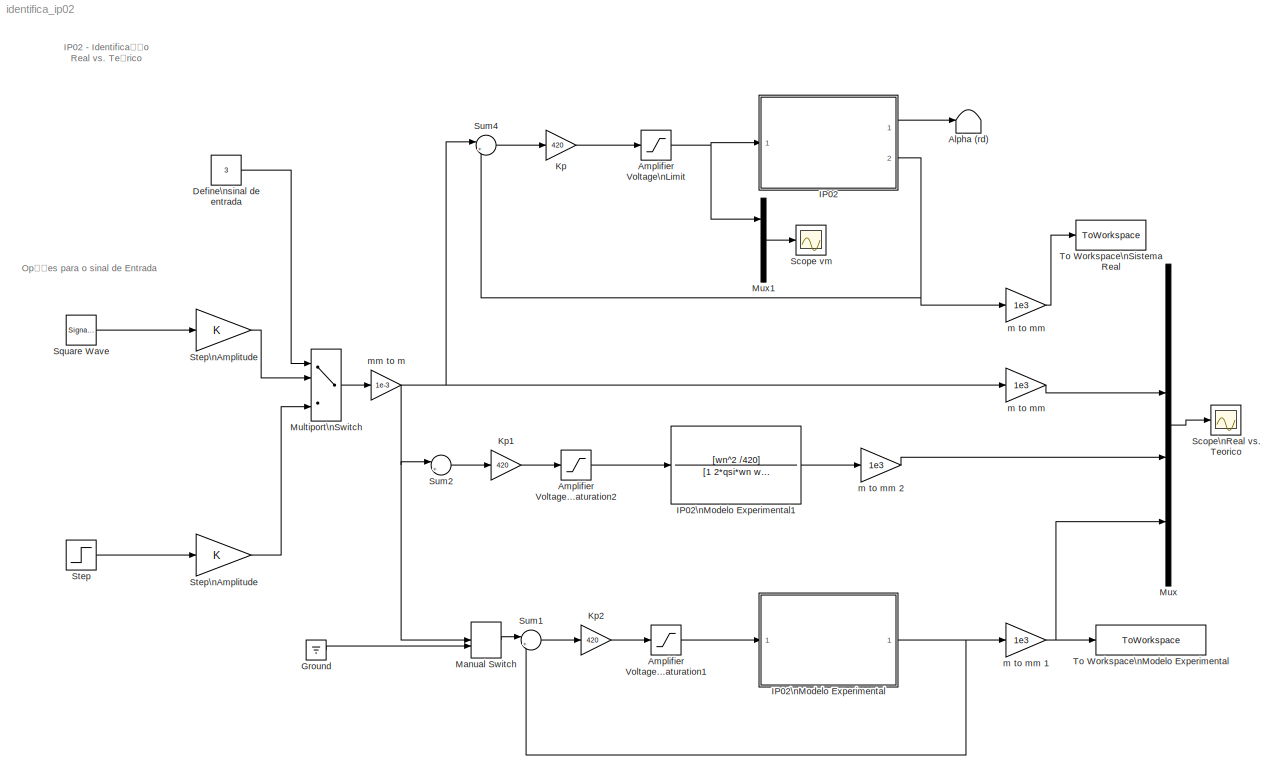
MODEL identifica_ip02
KIND model
BLOCK [Terminator] Alpha (rd)
  SID = 1
BLOCK [Saturate] Amplifier Voltage\nLimit
  InputPortMap = u0
  LowerLimit = - VMAX_AMP
  Ports = [1, 1]
  SID = 2
  UpperLimit = VMAX_AMP
BLOCK [Saturate] Amplifier Voltage\nSaturation1
  InputPortMap = u0
  LowerLimit = - VMAX_AMP
  Ports = [1, 1]
  SID = 3
  UpperLimit = VMAX_AMP
BLOCK [Saturate] Amplifier Voltage\nSaturation2
  InputPortMap = u0
  LowerLimit = - VMAX_AMP
  Ports = [1, 1]
  SID = 73
  UpperLimit = VMAX_AMP
BLOCK [Constant] Define\nsinal de entrada
  SID = 5
  Value = 3
BLOCK [Ground] Ground
  SID = 6
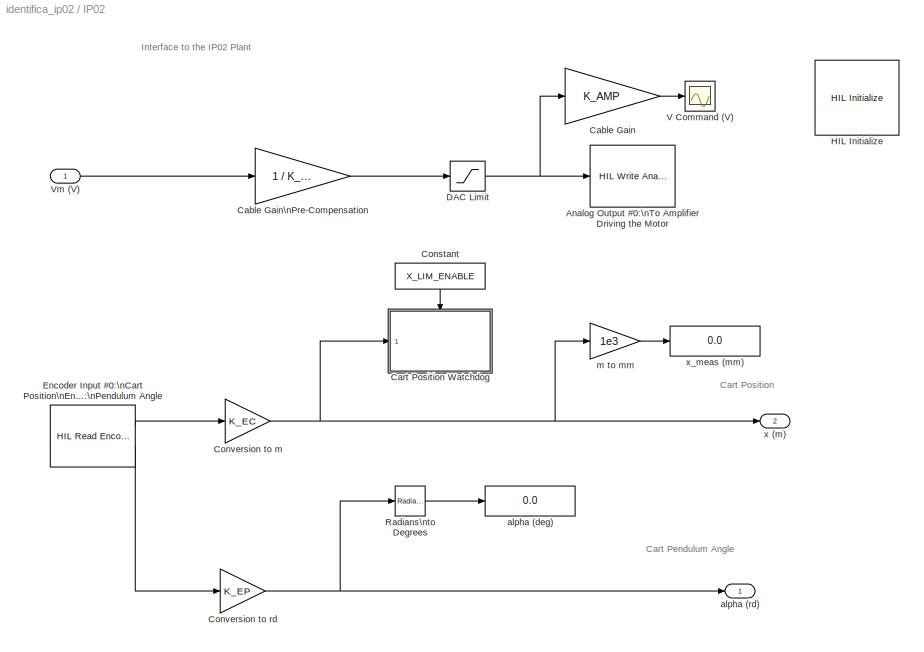
BLOCK [SubSystem] IP02
  Commented = on
  Ports = [1, 2]
  RequestExecContextInheritance = off
  SID = 7
BLOCK [Reference] IP02/Analog Output #0:\nTo Amplifier Driving the Motor  REF=quarc_library/Data Acquisition/Generic/Immediate I//O/HIL Write Analog
  AttributesFormatString = (%<object_name>)
  Ports = [1]
  SID = 9
  SourceBlock = quarc_library/Data Acquisition/Generic/Immediate I//O/HIL Write Analog
  SourceType = HIL Write Analog
  Tag = unassigned
  UserData = DataTag0
  UserDataPersistent = on
  active = on
  channels = 0
  object_name = HIL-1
  sample_time = -1
  vector_input = on
BLOCK [Gain] IP02/Cable Gain
  Gain = K_AMP
  SID = 10
BLOCK [Gain] IP02/Cable Gain\nPre-Compensation
  Gain = 1 / K_AMP
  SID = 11
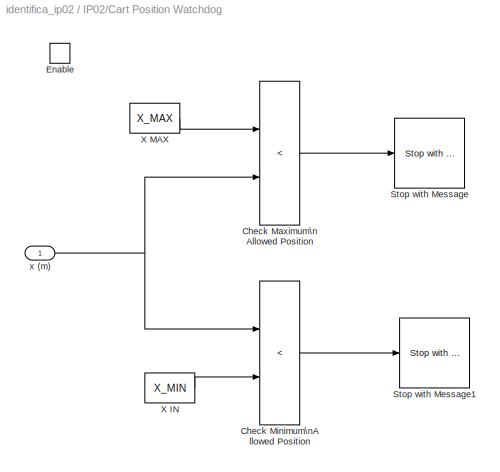
BLOCK [SubSystem] IP02/Cart Position Watchdog
  Ports = [1, 0, 1]
  RequestExecContextInheritance = off
  SID = 12
  TreatAsAtomicUnit = on
BLOCK [RelationalOperator] IP02/Cart Position Watchdog/Check Maximum\nAllowed Position
  Operator = <
  Ports = [2, 1]
  SID = 15
BLOCK [RelationalOperator] IP02/Cart Position Watchdog/Check Minimum\nAllowed Position
  Operator = <
  Ports = [2, 1]
  SID = 16
BLOCK [EnablePort] IP02/Cart Position Watchdog/Enable
  Ports = []
  SID = 14
BLOCK [Reference] IP02/Cart Position Watchdog/Stop with Message  REF=quarc_library/Sinks/Error Handling/Stop with Message
  AttributesFormatString = \"%<message>\"
  FunctionWithSeparateData = off
  Ports = [1]
  RTWMemSecDataConstants = Inherit from model
  RTWMemSecDataInternal = Inherit from model
  RTWMemSecDataParameters = Inherit from model
  RTWMemSecFuncExecute = Inherit from model
  RTWMemSecFuncInitTerm = Inherit from model
  SID = 17
  ShowPortLabels = FromPortIcon
  SourceBlock = quarc_library/Sinks/Error Handling/Stop with Message
  SourceType = Stop with Message
  SystemSampleTime = -1
  message = Maximum Limit Reached.
  message_icon = Error
  message_type = Fixed error message
BLOCK [Reference] IP02/Cart Position Watchdog/Stop with Message1  REF=quarc_library/Sinks/Error Handling/Stop with Message
  AttributesFormatString = \"%<message>\"
  FunctionWithSeparateData = off
  Ports = [1]
  RTWMemSecDataConstants = Inherit from model
  RTWMemSecDataInternal = Inherit from model
  RTWMemSecDataParameters = Inherit from model
  RTWMemSecFuncExecute = Inherit from model
  RTWMemSecFuncInitTerm = Inherit from model
  SID = 18
  ShowPortLabels = FromPortIcon
  SourceBlock = quarc_library/Sinks/Error Handling/Stop with Message
  SourceType = Stop with Message
  SystemSampleTime = -1
  message = Minimum Limit Reached.
  message_icon = Error
  message_type = Fixed error message
BLOCK [Constant] IP02/Cart Position Watchdog/X IN
  SID = 19
  Value = X_MIN
BLOCK [Constant] IP02/Cart Position Watchdog/X MAX
  SID = 20
  Value = X_MAX
BLOCK [Inport] IP02/Cart Position Watchdog/x (m)
  IconDisplay = Port number
  SID = 13
BLOCK [Constant] IP02/Constant
  SID = 21
  Value = X_LIM_ENABLE
BLOCK [Gain] IP02/Conversion to m
  Gain = K_EC
  SID = 22
BLOCK [Gain] IP02/Conversion to rd
  Gain = K_EP
  SID = 23
BLOCK [Saturate] IP02/DAC Limit
  InputPortMap = u0
  LowerLimit = - VMAX_DAC
  Ports = [1, 1]
  SID = 24
  UpperLimit = VMAX_DAC
BLOCK [Reference] IP02/Encoder Input #0:\nCart Position\nEncoder Input #1:\nPendulum Angle  REF=quarc_library/Data Acquisition/Generic/Timebases/HIL Read Encoder\nTimebase
  AttributesFormatString = (%<object_name>)
  Ports = [0, 2]
  SID = 25
  SourceBlock = quarc_library/Data Acquisition/Generic/Timebases/HIL Read Encoder\nTimebase
  SourceType = HIL Read Encoder Timebase
  Tag = unassigned
  UserData = DataTag1
  UserDataPersistent = on
  active = on
  channels = [0,1]
  clock = 0
  data_type = double
  data_type_mode = Inherit via back propagation
  object_name = HIL-1
  samples_in_buffer = max(ceil(1/qc_get_step_size), 1)
  vector_output = off
BLOCK [Reference] IP02/HIL Initialize  REF=quarc_library/Data Acquisition/Generic/Configuration/HIL Initialize
  AttributesFormatString = %<object_name> (%<board_type>-%<board_number>)
  Ports = []
  SID = 26
  SourceBlock = quarc_library/Data Acquisition/Generic/Configuration/HIL Initialize
  SourceType = HIL Initialize
  UserData = DataTag2
  UserDataPersistent = on
  active = off
  analog_input_channels = [0:7]
  analog_input_maximums = 10
  analog_input_minimums = -10
  analog_output_channels = [0:7]
  analog_output_maximums = 10
  analog_output_minimums = -10
  board_number = 0
  board_options = update_rate=normal
  board_type = q8_usb
  clock_modes = []
  digital_input_channels = []
  digital_output_channels = [0:7]
  digital_output_configuration = []
  encoder_channels = [0:7]
  encoder_filter_frequency = []
  exclusive = off
  final_analog_outputs = [0]
  final_digital_outputs = [0]
  final_other_outputs = []
  final_pwm_outputs = [0]
  hardware_clocks = [0:2]
  initial_analog_outputs = [0]
  initial_digital_outputs = [0]
  initial_encoder_counts = [0]
  initial_other_outputs = []
  initial_pwm_outputs = [0]
  object_name = HIL-1
  other_output_channels = []
  pwm_alignment = [0]
  pwm_channels = [0:7]
  pwm_configuration = [0]
  pwm_frequency = 99.532799999999995e6/4095
  pwm_leading_deadband = [0]
  pwm_modes = 0
  pwm_polarity = [1]
  pwm_trailing_deadband = [0]
  quadrature = [4]
  set_analog_input_params_at_start = on
  set_analog_input_params_at_switch_in = off
  set_analog_output_params_at_start = on
  set_analog_output_params_at_switch_in = off
  set_analog_outputs_at_start = on
  set_analog_outputs_at_switch_in = off
  set_analog_outputs_at_switch_out = off
  set_analog_outputs_at_terminate = on
  set_analog_outputs_on_watchdog = off
  set_clock_params_at_start = off
  set_clock_params_at_switch_in = off
  set_digital_output_params_at_start = off
  set_digital_output_params_at_switch_in = off
  set_digital_outputs_at_start = on
  set_digital_outputs_at_switch_in = off
  set_digital_outputs_at_switch_out = off
  set_digital_outputs_at_terminate = on
  set_digital_outputs_on_watchdog = off
  set_encoder_counts_at_start = on
  set_encoder_counts_at_switch_in = off
  set_encoder_params_at_start = on
  set_encoder_params_at_switch_in = off
  set_other_outputs_at_start = off
  set_other_outputs_at_switch_in = off
  set_other_outputs_at_switch_out = off
  set_other_outputs_at_terminate = off
  set_other_outputs_on_watchdog = off
  set_pwm_outputs_at_start = on
  set_pwm_outputs_at_switch_in = off
  set_pwm_outputs_at_switch_out = off
  set_pwm_outputs_at_terminate = on
  set_pwm_outputs_on_watchdog = off
  set_pwm_params_at_start = on
  set_pwm_params_at_switch_in = off
  watchdog_analog_outputs = 0
  watchdog_digital_outputs = [0]
  watchdog_other_outputs = []
  watchdog_pwm_outputs = [0]
BLOCK [Reference] IP02/Radians\nto Degrees  REF=simulink_extras/Transformations/Radians\nto Degrees
  Ports = [1, 1]
  SID = 27
  SourceBlock = simulink_extras/Transformations/Radians\nto Degrees
  SourceProductBaseCode = SL
  SourceProductName = Simulink
  SourceType = RadiansToDegrees
BLOCK [Scope] IP02/V Command (V)
  Floating = off
  NumInputPorts = 1
  Ports = [1]
  SID = 28
  ScopeSpecificationString = C++SS(StrPVP('Location','[188, 599, 656, 866]'),StrPVP('Open','off'),StrPVP('TickLabels','on'),MxPVP('AxesTitles',53,'struct(''axes1'',''%<SignalLabel>'')'),StrPVP('TimeRange','5'),StrPVP('YMin','-3'),StrPVP('YMax','2.5'),StrPVP('SaveToWorkspace','on'),StrPVP('SaveName','data_vm'),StrPVP('DataFormat','Array'),StrPVP('MaxDataPoints','2500'),StrPVP('BlockParamSampleTime','0'),StrPVP('LimitDataPoints...<+71ch>
BLOCK [Inport] IP02/Vm (V)
  IconDisplay = Port number
  SID = 8
BLOCK [Display] IP02/alpha (deg)
  Decimation = 100
  Ports = [1]
  SID = 29
BLOCK [Outport] IP02/alpha (rd)
  IconDisplay = Port number
  InitialOutput = 0
  SID = 32
BLOCK [Gain] IP02/m to mm
  Gain = 1e3
  SID = 30
BLOCK [Outport] IP02/x (m)
  IconDisplay = Port number
  InitialOutput = 0
  Port = 2
  SID = 33
BLOCK [Display] IP02/x_meas (mm)
  Decimation = 100
  Ports = [1]
  SID = 31
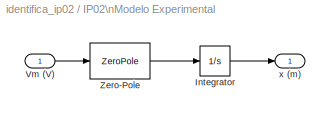
BLOCK [SubSystem] IP02\nModelo Experimental
  Ports = [1, 1]
  RequestExecContextInheritance = off
  SID = 37
BLOCK [Integrator] IP02\nModelo Experimental/Integrator
  Ports = [1, 1]
  SID = 39
BLOCK [Inport] IP02\nModelo Experimental/Vm (V)
  IconDisplay = Port number
  SID = 38
BLOCK [ZeroPole] IP02\nModelo Experimental/Zero-Pole
  Gain = [b]
  Poles = [-a]
  SID = 40
  Zeros = []
BLOCK [Outport] IP02\nModelo Experimental/x (m)
  IconDisplay = Port number
  SID = 41
BLOCK [TransferFcn] IP02\nModelo Experimental1
  Denominator = [1 2*qsi*wn wn^2]
  Numerator = [wn^2 /420]
  SID = 71
BLOCK [Gain] Kp
  Gain = 420
  SID = 42
BLOCK [Gain] Kp1
  Gain = 420
  SID = 74
BLOCK [Gain] Kp2
  Gain = 420
  SID = 43
BLOCK [ManualSwitch] Manual Switch
  SID = 44
BLOCK [MultiPortSwitch] Multiport\nSwitch
  InputSameDT = off
  Ports = [4, 1]
  SID = 46
  SaturateOnIntegerOverflow = off
BLOCK [Mux] Mux
  DisplayOption = bar
  Ports = [4, 1]
  SID = 47
BLOCK [Mux] Mux1
  DisplayOption = bar
  Inputs = 3
  Ports = [3, 1]
  SID = 48
BLOCK [Scope] Scope vm
  Floating = off
  NumInputPorts = 1
  Ports = [1]
  SID = 56
  ScopeSpecificationString = C++SS(StrPVP('Location','[163, 167, 1174, 894]'),StrPVP('Open','off'),StrPVP('TickLabels','on'),StrPVP('ZoomMode','yonly'),MxPVP('AxesTitles',53,'struct(''axes1'',''%<SignalLabel>'')'),StrPVP('TimeRange','5'),StrPVP('YMin','-11'),StrPVP('YMax','11'),StrPVP('SaveToWorkspace','on'),StrPVP('SaveName','vm'),StrPVP('DataFormat','Array'),StrPVP('LimitDataPoints','off'),StrPVP('BlockParamSampleTime','0')...<+64ch>
BLOCK [Scope] Scope\nReal vs. Teorico
  Floating = off
  NumInputPorts = 1
  Ports = [1]
  SID = 55
  ScopeSpecificationString = Simulink.scopes.TimeScopeBlockCfg('CurrentConfiguration', extmgr.ConfigurationSet(extmgr.Configuration('Core','General UI',true),extmgr.Configuration('Core','Source UI',true),extmgr.Configuration('Sources','WiredSimulink',true,'DataLogging',true,'DataLoggingVariableName','x','DataLoggingSaveFormat','Array','DataLoggingDecimation','1','DataLoggingDecimateData',true),extmgr.Configuration('Visuals','...<+1764ch>
BLOCK [SignalGenerator] Square Wave
  Frequency = 0.66
  Ports = [0, 1]
  SID = 57
  WaveForm = square
BLOCK [Step] Step
  SID = 58
  SampleTime = 0
  Time = 0
BLOCK [Gain] Step\nAmplitude
  SID = 59
BLOCK [Gain] Step\nAmplitude 
  SID = 60
BLOCK [Sum] Sum1
  IconShape = round
  Inputs = |+-
  Ports = [2, 1]
  SID = 61
BLOCK [Sum] Sum2
  IconShape = round
  Inputs = |+-
  Ports = [2, 1]
  SID = 75
BLOCK [Sum] Sum4
  IconShape = round
  Inputs = |+-
  Ports = [2, 1]
  SID = 62
BLOCK [ToWorkspace] To Workspace\nModelo Experimental
  MaxDataPoints = inf
  Ports = [1]
  SID = 63
  SampleTime = -1
  SaveFormat = Structure With Time
  VariableName = output_experimental
BLOCK [ToWorkspace] To Workspace\nSistema Real
  MaxDataPoints = inf
  Ports = [1]
  SID = 64
  SampleTime = -1
  SaveFormat = Structure With Time
  VariableName = output_real
BLOCK [Gain] m to mm
  Gain = 1e3
  SID = 65
BLOCK [Gain] m to mm 
  Gain = 1e3
  SID = 66
BLOCK [Gain] m to mm  1
  Gain = 1e3
  SID = 67
BLOCK [Gain] m to mm  2
  Gain = 1e3
  SID = 72
BLOCK [Gain] mm to m
  Gain = 1e-3
  OutDataTypeStr = Inherit: Inherit via internal rule
  ParamDataTypeStr = Inherit: Inherit via internal rule
  SID = 68
  SaturateOnIntegerOverflow = off
ANNOTATION (root): IP02 - Identificação\nReal vs. Teórico
ANNOTATION (root): Opções para o sinal de Entrada
ANNOTATION IP02: Cart Pendulum Angle
ANNOTATION IP02: Cart Position
ANNOTATION IP02: Interface to the IP02 Plant
NET Amplifier Voltage\nLimit:1 -> IP02:1, Mux1:1
LINE Amplifier Voltage\nSaturation1:1 -> IP02\nModelo Experimental:1
LINE Amplifier Voltage\nSaturation2:1 -> IP02\nModelo Experimental1:1
LINE Define\nsinal de entrada:1 -> Multiport\nSwitch:1
LINE Ground:1 -> Manual Switch:2
LINE IP02/Cable Gain:1 -> IP02/V Command (V):1
LINE IP02/Cable Gain\nPre-Compensation:1 -> IP02/DAC Limit:1
LINE IP02/Cart Position Watchdog/Check Maximum\nAllowed Position:1 -> IP02/Cart Position Watchdog/Stop with Message:1
LINE IP02/Cart Position Watchdog/Check Minimum\nAllowed Position:1 -> IP02/Cart Position Watchdog/Stop with Message1:1
LINE IP02/Cart Position Watchdog/X IN:1 -> IP02/Cart Position Watchdog/Check Minimum\nAllowed Position:2
LINE IP02/Cart Position Watchdog/X MAX:1 -> IP02/Cart Position Watchdog/Check Maximum\nAllowed Position:1
NET IP02/Cart Position Watchdog/x (m):1 -> IP02/Cart Position Watchdog/Check Maximum\nAllowed Position:2, IP02/Cart Position Watchdog/Check Minimum\nAllowed Position:1
LINE IP02/Constant:1 -> IP02/Cart Position Watchdog:enable
NET IP02/Conversion to m:1 -> IP02/Cart Position Watchdog:1, IP02/m to mm:1, IP02/x (m):1
NET IP02/Conversion to rd:1 -> IP02/Radians\nto Degrees:1, IP02/alpha (rd):1
NET IP02/DAC Limit:1 -> IP02/Analog Output #0:\nTo Amplifier Driving the Motor:1, IP02/Cable Gain:1
LINE IP02/Encoder Input #0:\nCart Position\nEncoder Input #1:\nPendulum Angle:1 -> IP02/Conversion to m:1
LINE IP02/Encoder Input #0:\nCart Position\nEncoder Input #1:\nPendulum Angle:2 -> IP02/Conversion to rd:1
LINE IP02/Radians\nto Degrees:1 -> IP02/alpha (deg):1
LINE IP02/Vm (V):1 -> IP02/Cable Gain\nPre-Compensation:1
LINE IP02/m to mm:1 -> IP02/x_meas (mm):1
LINE IP02:1 -> Alpha (rd):1
NET IP02:2 -> Sum4:2, m to mm:1
LINE IP02\nModelo Experimental/Integrator:1 -> IP02\nModelo Experimental/x (m):1
LINE IP02\nModelo Experimental/Vm (V):1 -> IP02\nModelo Experimental/Zero-Pole:1
LINE IP02\nModelo Experimental/Zero-Pole:1 -> IP02\nModelo Experimental/Integrator:1
LINE IP02\nModelo Experimental1:1 -> m to mm  2:1
NET IP02\nModelo Experimental:1 -> Sum1:2, m to mm  1:1
LINE Kp1:1 -> Amplifier Voltage\nSaturation2:1
LINE Kp2:1 -> Amplifier Voltage\nSaturation1:1
LINE Kp:1 -> Amplifier Voltage\nLimit:1
LINE Manual Switch:1 -> Sum1:1
LINE Multiport\nSwitch:1 -> mm to m:1
LINE Mux1:1 -> Scope vm:1
LINE Mux:1 -> Scope\nReal vs. Teorico:1
LINE Square Wave:1 -> Step\nAmplitude:1
LINE Step:1 -> Step\nAmplitude :1
LINE Step\nAmplitude :1 -> Multiport\nSwitch:4
LINE Step\nAmplitude:1 -> Multiport\nSwitch:2
LINE Sum1:1 -> Kp2:1
LINE Sum2:1 -> Kp1:1
LINE Sum4:1 -> Kp:1
NET m to mm  1:1 -> Mux:4, To Workspace\nModelo Experimental:1
LINE m to mm  2:1 -> Mux:3
LINE m to mm :1 -> Mux:2
LINE m to mm:1 -> To Workspace\nSistema Real:1
NET mm to m:1 -> Manual Switch:1, Sum2:1, Sum4:1, m to mm :1
note: NET lines group one-source signal fan-out (src -> all destinations, sorted); 1:1 wires keep LINE
